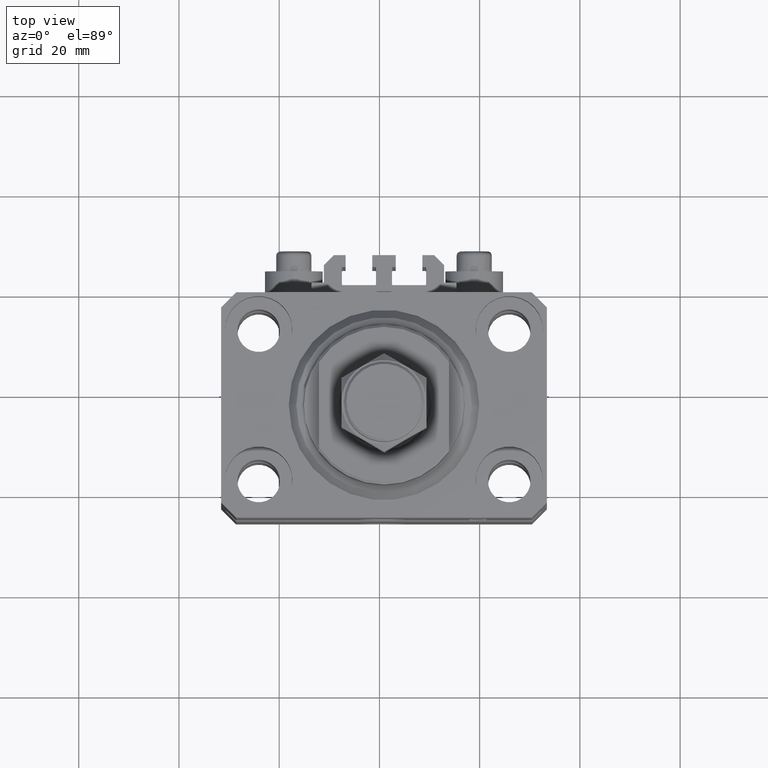
[diagram: clean part render]
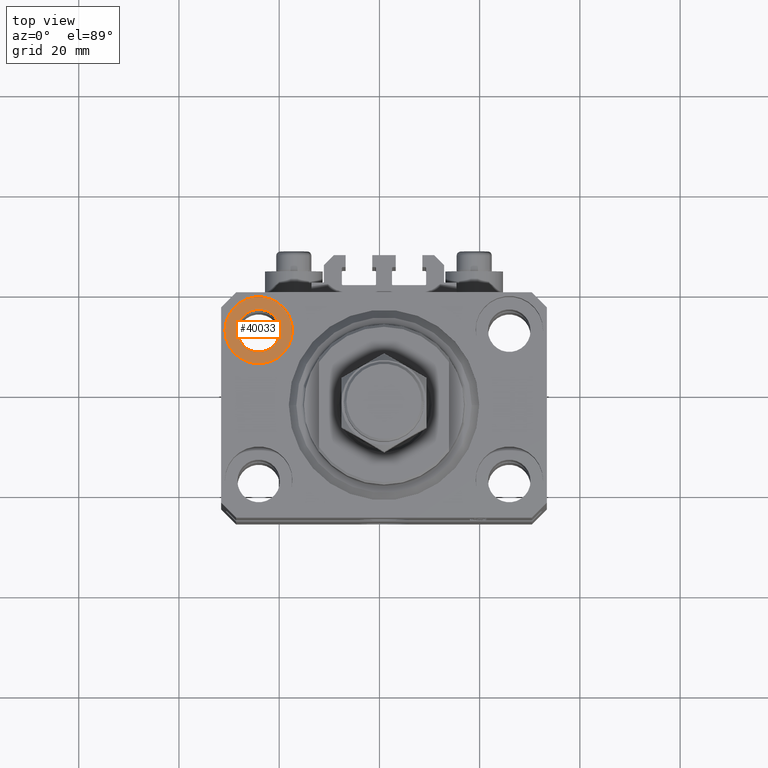
[diagram: same view with one face highlighted and labeled with its STEP entity id]
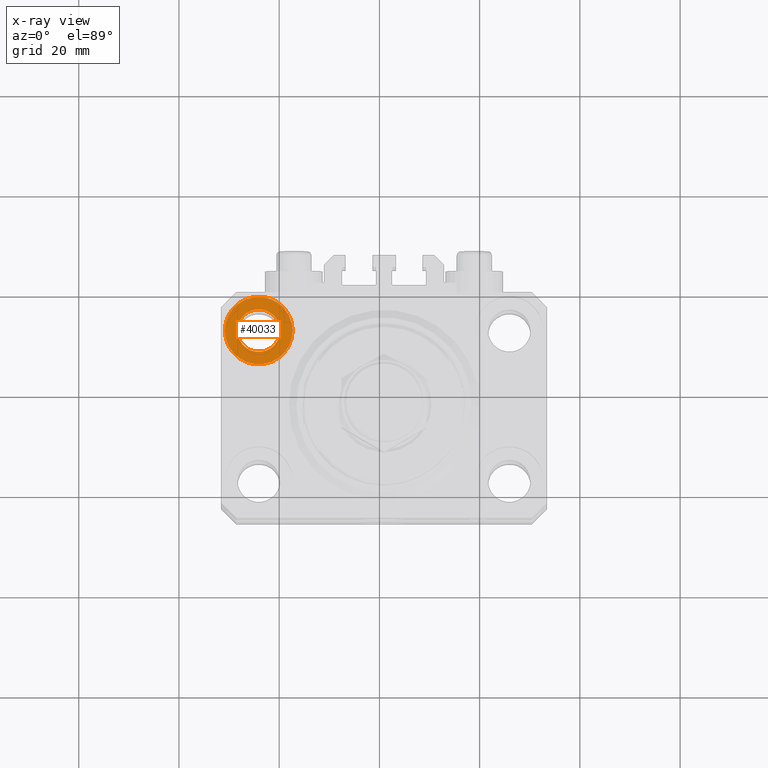
[diagram: x-ray of the same camera — body ghosted, the highlighted face saturated]
A machine part, top view. The second image highlights one B-rep face of the part: STEP entity #40033.
The next image is the same camera in x-ray: the body ghosted, the highlighted face saturated — about 0% of this face is hidden behind the body in this view.
In plain terms, the highlighted planar face has unit normal (0, 0, 1).
Its self-contained STEP definition (entity closure, byte-faithful):
#897 = ORIENTED_EDGE ( 'NONE', *, *, #22348, .F. ) ;
#5050 = CIRCLE ( 'NONE', #20205, 6.750000000022533087 ) ;
#7865 = EDGE_LOOP ( 'NONE', ( #46775, #897 ) ) ;
#7945 = ORIENTED_EDGE ( 'NONE', *, *, #12587, .T. ) ;
#8887 = FACE_OUTER_BOUND ( 'NONE', #9112, .T. ) ;
#9112 = EDGE_LOOP ( 'NONE', ( #7945, #17412 ) ) ;
#9192 = DIRECTION ( 'NONE',  ( 1.000000000000000000, 0.000000000000000000, 0.000000000000000000 ) ) ;
#9890 = DIRECTION ( 'NONE',  ( 1.000000000000000000, 0.000000000000000000, 0.000000000000000000 ) ) ;
#12587 = EDGE_CURVE ( 'NONE', #23035, #42713, #5050, .T. ) ;
#14131 = DIRECTION ( 'NONE',  ( 0.000000000000000000, 0.000000000000000000, 1.000000000000000000 ) ) ;
#16281 = VERTEX_POINT ( 'NONE', #47797 ) ;
#16632 = CIRCLE ( 'NONE', #46122, 6.750000000022533087 ) ;
#17412 = ORIENTED_EDGE ( 'NONE', *, *, #27299, .T. ) ;
#17601 = DIRECTION ( 'NONE',  ( 0.000000000000000000, 0.000000000000000000, 1.000000000000000000 ) ) ;
#20205 = AXIS2_PLACEMENT_3D ( 'NONE', #33329, #22098, #46218 ) ;
#20874 = PLANE ( 'NONE',  #30403 ) ;
#22098 = DIRECTION ( 'NONE',  ( 0.000000000000000000, 0.000000000000000000, 1.000000000000000000 ) ) ;
#22348 = EDGE_CURVE ( 'NONE', #46691, #16281, #33338, .T. ) ;
#23035 = VERTEX_POINT ( 'NONE', #33996 ) ;
#25089 = CARTESIAN_POINT ( 'NONE',  ( -25.00000000000000355, 15.00000000000000000, -9.000000000000000000 ) ) ;
#27299 = EDGE_CURVE ( 'NONE', #42713, #23035, #16632, .T. ) ;
#28624 = CARTESIAN_POINT ( 'NONE',  ( -25.00000000000000355, 15.00000000000000000, -9.000000000000000000 ) ) ;
#29893 = CARTESIAN_POINT ( 'NONE',  ( -31.75000000002253842, 15.00000000000000000, -9.000000000000000000 ) ) ;
#30403 = AXIS2_PLACEMENT_3D ( 'NONE', #36108, #17601, #35863 ) ;
#32832 = DIRECTION ( 'NONE',  ( 1.000000000000000000, 0.000000000000000000, 0.000000000000000000 ) ) ;
#33329 = CARTESIAN_POINT ( 'NONE',  ( -25.00000000000000355, 15.00000000000000000, -9.000000000000000000 ) ) ;
#33338 = CIRCLE ( 'NONE', #37301, 4.250000000022537527 ) ;
#33996 = CARTESIAN_POINT ( 'NONE',  ( -18.24999999997747224, 15.00000000000000000, -9.000000000000000000 ) ) ;
#35863 = DIRECTION ( 'NONE',  ( 1.000000000000000000, 0.000000000000000000, -0.000000000000000000 ) ) ;
#36108 = CARTESIAN_POINT ( 'NONE',  ( -25.00000000000000355, 15.00000000000000000, -9.000000000000000000 ) ) ;
#37301 = AXIS2_PLACEMENT_3D ( 'NONE', #28624, #14131, #9890 ) ;
#39672 = EDGE_CURVE ( 'NONE', #16281, #46691, #44836, .T. ) ;
#40033 = ADVANCED_FACE ( 'NONE', ( #43108, #8887 ), #20874, .T. ) ;
#40326 = DIRECTION ( 'NONE',  ( 0.000000000000000000, 0.000000000000000000, 1.000000000000000000 ) ) ;
#42713 = VERTEX_POINT ( 'NONE', #29893 ) ;
#43108 = FACE_BOUND ( 'NONE', #7865, .T. ) ;
#43649 = CARTESIAN_POINT ( 'NONE',  ( -25.00000000000000355, 15.00000000000000000, -9.000000000000000000 ) ) ;
#43889 = DIRECTION ( 'NONE',  ( 0.000000000000000000, 0.000000000000000000, 1.000000000000000000 ) ) ;
#44836 = CIRCLE ( 'NONE', #46443, 4.250000000022537527 ) ;
#46122 = AXIS2_PLACEMENT_3D ( 'NONE', #25089, #40326, #32832 ) ;
#46218 = DIRECTION ( 'NONE',  ( 1.000000000000000000, 0.000000000000000000, 0.000000000000000000 ) ) ;
#46443 = AXIS2_PLACEMENT_3D ( 'NONE', #43649, #43889, #9192 ) ;
#46691 = VERTEX_POINT ( 'NONE', #49096 ) ;
#46775 = ORIENTED_EDGE ( 'NONE', *, *, #39672, .F. ) ;
#47797 = CARTESIAN_POINT ( 'NONE',  ( -20.74999999997746869, 15.00000000000000000, -9.000000000000000000 ) ) ;
#49096 = CARTESIAN_POINT ( 'NONE',  ( -29.25000000002254197, 15.00000000000000000, -9.000000000000000000 ) ) ;